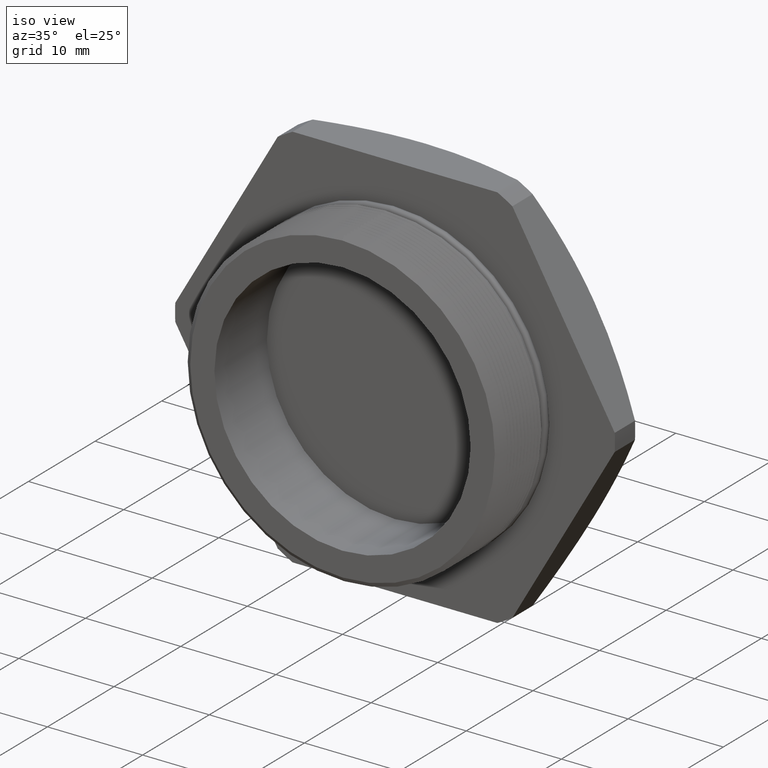
[diagram: clean part render]
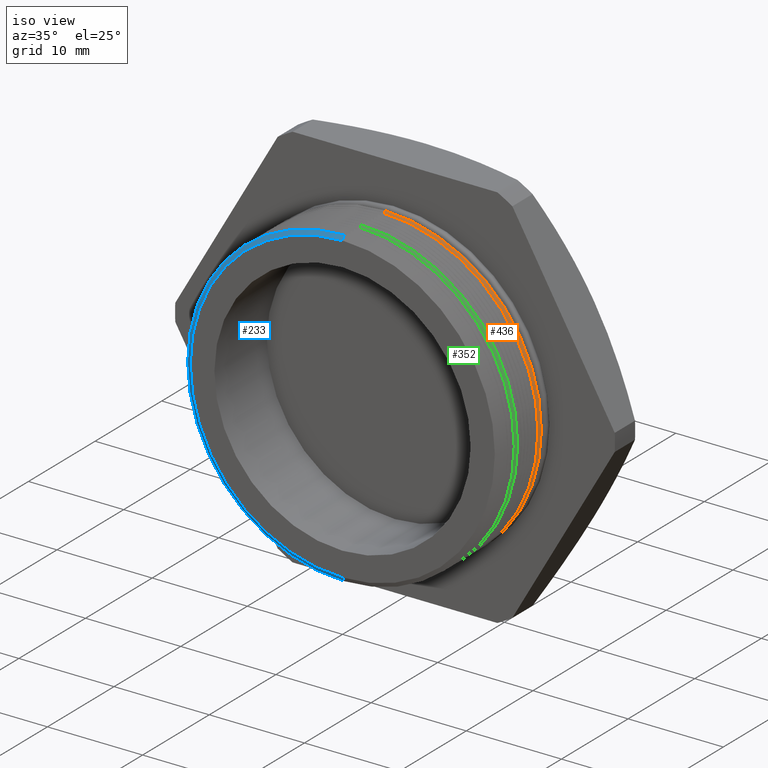
[diagram: same view with three faces highlighted in distinct colors, each labeled with its STEP entity id]
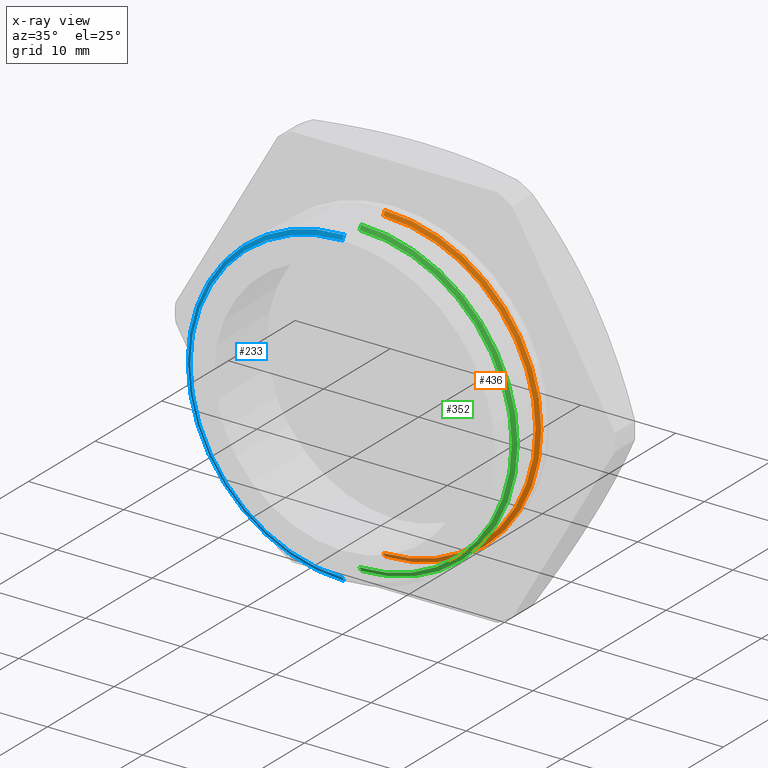
[diagram: x-ray of the same camera — body ghosted, the three highlighted faces saturated]
A machine part, iso view with three faces highlighted in distinct colors.
The next image is the same camera in x-ray (body ghosted, the three faces saturated) — at least one of them is partly hidden behind the body in this view.
Their STEP definitions:

[orange] entity #436 — the highlighted conical surface has half-angle 60 deg.
#434 = ORIENTED_EDGE ( 'NONE', *, *, #900, .F. ) ;
#435 = ORIENTED_EDGE ( 'NONE', *, *, #440, .T. ) ;
#436 = ADVANCED_FACE ( 'NONE', ( #1482 ), #1481, .T. ) ;
#437 = ORIENTED_EDGE ( 'NONE', *, *, #2234, .T. ) ;
#438 = VERTEX_POINT ( 'NONE', #1536 ) ;
#439 = EDGE_LOOP ( 'NONE', ( #434, #437, #435, #538 ) ) ;
#440 = EDGE_CURVE ( 'NONE', #438, #491, #1535, .T. ) ;
#491 = VERTEX_POINT ( 'NONE', #1625 ) ;
#537 = EDGE_CURVE ( 'NONE', #1002, #491, #1723, .T. ) ;
#538 = ORIENTED_EDGE ( 'NONE', *, *, #537, .F. ) ;
#900 = EDGE_CURVE ( 'NONE', #1266, #1002, #2111, .T. ) ;
#1002 = VERTEX_POINT ( 'NONE', #2105 ) ;
#1266 = VERTEX_POINT ( 'NONE', #2100 ) ;
#1476 = DIRECTION ( 'NONE',  ( 0.0000000000000000000, 0.0000000000000000000, 1.000000000000000000 ) ) ;
#1477 = DIRECTION ( 'NONE',  ( 0.0000000000000000000, 1.000000000000000000, 0.0000000000000000000 ) ) ;
#1478 = CARTESIAN_POINT ( 'NONE',  ( 0.0000000000000000000, 0.2499999999999998100, 0.0000000000000000000 ) ) ;
#1479 = AXIS2_PLACEMENT_3D ( 'NONE', #1478, #1477, #1476 ) ;
#1481 = CONICAL_SURFACE ( 'NONE', #1479, 0.6473205080756885300, 1.047197551196601600 ) ;
#1482 = FACE_OUTER_BOUND ( 'NONE', #439, .T. ) ;
#1531 = DIRECTION ( 'NONE',  ( 0.0000000000000000000, 0.0000000000000000000, -1.000000000000000000 ) ) ;
#1532 = DIRECTION ( 'NONE',  ( 0.0000000000000000000, -1.000000000000000000, 0.0000000000000000000 ) ) ;
#1533 = CARTESIAN_POINT ( 'NONE',  ( 0.0000000000000000000, 0.2499999999999998100, 0.0000000000000000000 ) ) ;
#1534 = AXIS2_PLACEMENT_3D ( 'NONE', #1533, #1532, #1531 ) ;
#1535 = CIRCLE ( 'NONE', #1534, 0.6473205080756885300 ) ;
#1536 = CARTESIAN_POINT ( 'NONE',  ( 0.0000000000000000000, 0.2499999999999998100, -0.6473205080756885300 ) ) ;
#1625 = CARTESIAN_POINT ( 'NONE',  ( 7.927389882373304600E-017, 0.2499999999999998100, 0.6473205080756885300 ) ) ;
#1716 = DIRECTION ( 'NONE',  ( 0.0000000000000000000, 0.4999999999999965600, 0.8660254037844405900 ) ) ;
#1717 = VECTOR ( 'NONE', #1716, 39.37007874015748100 ) ;
#1718 = CARTESIAN_POINT ( 'NONE',  ( 0.0000000000000000000, 0.2499999999999998100, 0.6473205080756885300 ) ) ;
#1723 = LINE ( 'NONE', #1718, #1717 ) ;
#2100 = CARTESIAN_POINT ( 'NONE',  ( 7.821332358500815000E-017, 0.2399999999999999100, -0.6300000000000000000 ) ) ;
#2105 = CARTESIAN_POINT ( 'NONE',  ( 0.0000000000000000000, 0.2399999999999999100, 0.6300000000000000000 ) ) ;
#2107 = DIRECTION ( 'NONE',  ( 0.0000000000000000000, 0.0000000000000000000, -1.000000000000000000 ) ) ;
#2108 = DIRECTION ( 'NONE',  ( 0.0000000000000000000, -1.000000000000000000, 0.0000000000000000000 ) ) ;
#2109 = CARTESIAN_POINT ( 'NONE',  ( 0.0000000000000000000, 0.2399999999999999100, 0.0000000000000000000 ) ) ;
#2110 = AXIS2_PLACEMENT_3D ( 'NONE', #2109, #2108, #2107 ) ;
#2111 = CIRCLE ( 'NONE', #2110, 0.6300000000000000000 ) ;
#2124 = DIRECTION ( 'NONE',  ( 1.060575238724909300E-016, 0.4999999999999965600, -0.8660254037844405900 ) ) ;
#2125 = VECTOR ( 'NONE', #2124, 39.37007874015748100 ) ;
#2126 = CARTESIAN_POINT ( 'NONE',  ( 7.927389882373304600E-017, 0.2499999999999998100, -0.6473205080756885300 ) ) ;
#2127 = LINE ( 'NONE', #2126, #2125 ) ;
#2234 = EDGE_CURVE ( 'NONE', #1266, #438, #2127, .T. ) ;

[blue] entity #233 — the highlighted conical surface has half-angle 60 deg.
#39 = ORIENTED_EDGE ( 'NONE', *, *, #196, .T. ) ;
#40 = ORIENTED_EDGE ( 'NONE', *, *, #375, .F. ) ;
#41 = ORIENTED_EDGE ( 'NONE', *, *, #42, .F. ) ;
#42 = EDGE_CURVE ( 'NONE', #150, #158, #809, .T. ) ;
#150 = VERTEX_POINT ( 'NONE', #967 ) ;
#158 = VERTEX_POINT ( 'NONE', #1019 ) ;
#182 = ORIENTED_EDGE ( 'NONE', *, *, #232, .T. ) ;
#196 = EDGE_CURVE ( 'NONE', #150, #197, #1024, .T. ) ;
#197 = VERTEX_POINT ( 'NONE', #1082 ) ;
#232 = EDGE_CURVE ( 'NONE', #197, #370, #1137, .T. ) ;
#233 = ADVANCED_FACE ( 'NONE', ( #1133 ), #1132, .T. ) ;
#234 = EDGE_LOOP ( 'NONE', ( #40, #41, #39, #182 ) ) ;
#370 = VERTEX_POINT ( 'NONE', #1350 ) ;
#375 = EDGE_CURVE ( 'NONE', #158, #370, #1410, .T. ) ;
#805 = DIRECTION ( 'NONE',  ( 0.0000000000000000000, 0.0000000000000000000, -1.000000000000000000 ) ) ;
#806 = DIRECTION ( 'NONE',  ( 0.0000000000000000000, -1.000000000000000000, 0.0000000000000000000 ) ) ;
#807 = CARTESIAN_POINT ( 'NONE',  ( 0.0000000000000000000, -1.024442997624098700E-016, 0.0000000000000000000 ) ) ;
#808 = AXIS2_PLACEMENT_3D ( 'NONE', #807, #806, #805 ) ;
#809 = CIRCLE ( 'NONE', #808, 0.6299999999999997800 ) ;
#967 = CARTESIAN_POINT ( 'NONE',  ( 0.0000000000000000000, -1.024442997624098700E-016, 0.6299999999999997800 ) ) ;
#1019 = CARTESIAN_POINT ( 'NONE',  ( 7.821332358500813800E-017, -1.024442997624098700E-016, -0.6299999999999997800 ) ) ;
#1024 = LINE ( 'NONE', #1085, #1084 ) ;
#1082 = CARTESIAN_POINT ( 'NONE',  ( 7.927389882373304600E-017, 0.009999999999999790300, 0.6473205080756885300 ) ) ;
#1083 = DIRECTION ( 'NONE',  ( 0.0000000000000000000, 0.4999999999999965600, 0.8660254037844405900 ) ) ;
#1084 = VECTOR ( 'NONE', #1083, 39.37007874015748100 ) ;
#1085 = CARTESIAN_POINT ( 'NONE',  ( 0.0000000000000000000, 0.009999999999999790300, 0.6473205080756885300 ) ) ;
#1127 = DIRECTION ( 'NONE',  ( 0.0000000000000000000, 0.0000000000000000000, 1.000000000000000000 ) ) ;
#1128 = DIRECTION ( 'NONE',  ( 0.0000000000000000000, 1.000000000000000000, 0.0000000000000000000 ) ) ;
#1129 = CARTESIAN_POINT ( 'NONE',  ( 0.0000000000000000000, 0.009999999999999790300, 0.0000000000000000000 ) ) ;
#1130 = AXIS2_PLACEMENT_3D ( 'NONE', #1129, #1128, #1127 ) ;
#1132 = CONICAL_SURFACE ( 'NONE', #1130, 0.6473205080756885300, 1.047197551196601600 ) ;
#1133 = FACE_OUTER_BOUND ( 'NONE', #234, .T. ) ;
#1134 = DIRECTION ( 'NONE',  ( 0.0000000000000000000, 0.0000000000000000000, -1.000000000000000000 ) ) ;
#1135 = DIRECTION ( 'NONE',  ( 0.0000000000000000000, -1.000000000000000000, 0.0000000000000000000 ) ) ;
#1136 = AXIS2_PLACEMENT_3D ( 'NONE', #1142, #1135, #1134 ) ;
#1137 = CIRCLE ( 'NONE', #1136, 0.6473205080756885300 ) ;
#1142 = CARTESIAN_POINT ( 'NONE',  ( 0.0000000000000000000, 0.009999999999999790300, 0.0000000000000000000 ) ) ;
#1350 = CARTESIAN_POINT ( 'NONE',  ( 0.0000000000000000000, 0.009999999999999790300, -0.6473205080756885300 ) ) ;
#1407 = DIRECTION ( 'NONE',  ( 1.060575238724909300E-016, 0.4999999999999965600, -0.8660254037844405900 ) ) ;
#1408 = VECTOR ( 'NONE', #1407, 39.37007874015748100 ) ;
#1409 = CARTESIAN_POINT ( 'NONE',  ( 7.927389882373304600E-017, 0.009999999999999790300, -0.6473205080756885300 ) ) ;
#1410 = LINE ( 'NONE', #1409, #1408 ) ;

[green] entity #352 — the highlighted conical surface has half-angle 60 deg.
#350 = VERTEX_POINT ( 'NONE', #1321 ) ;
#352 = ADVANCED_FACE ( 'NONE', ( #1315 ), #1314, .T. ) ;
#353 = VERTEX_POINT ( 'NONE', #1375 ) ;
#355 = EDGE_CURVE ( 'NONE', #466, #353, #1374, .T. ) ;
#356 = ORIENTED_EDGE ( 'NONE', *, *, #355, .F. ) ;
#357 = EDGE_CURVE ( 'NONE', #350, #353, #1370, .T. ) ;
#359 = ORIENTED_EDGE ( 'NONE', *, *, #469, .F. ) ;
#361 = ORIENTED_EDGE ( 'NONE', *, *, #357, .T. ) ;
#362 = EDGE_CURVE ( 'NONE', #461, #350, #1363, .T. ) ;
#461 = VERTEX_POINT ( 'NONE', #1557 ) ;
#466 = VERTEX_POINT ( 'NONE', #1552 ) ;
#469 = EDGE_CURVE ( 'NONE', #461, #466, #1549, .T. ) ;
#470 = EDGE_LOOP ( 'NONE', ( #359, #471, #361, #356 ) ) ;
#471 = ORIENTED_EDGE ( 'NONE', *, *, #362, .T. ) ;
#1314 = CONICAL_SURFACE ( 'NONE', #1379, 0.6473205080756885300, 1.047197551196601600 ) ;
#1315 = FACE_OUTER_BOUND ( 'NONE', #470, .T. ) ;
#1321 = CARTESIAN_POINT ( 'NONE',  ( 0.0000000000000000000, 0.1099999999999997800, -0.6473205080756885300 ) ) ;
#1360 = DIRECTION ( 'NONE',  ( 1.060575238724909300E-016, 0.4999999999999965600, -0.8660254037844405900 ) ) ;
#1361 = VECTOR ( 'NONE', #1360, 39.37007874015748100 ) ;
#1362 = CARTESIAN_POINT ( 'NONE',  ( 7.927389882373304600E-017, 0.1099999999999997800, -0.6473205080756885300 ) ) ;
#1363 = LINE ( 'NONE', #1362, #1361 ) ;
#1366 = DIRECTION ( 'NONE',  ( 0.0000000000000000000, 0.0000000000000000000, -1.000000000000000000 ) ) ;
#1367 = DIRECTION ( 'NONE',  ( 0.0000000000000000000, -1.000000000000000000, 0.0000000000000000000 ) ) ;
#1368 = CARTESIAN_POINT ( 'NONE',  ( 0.0000000000000000000, 0.1099999999999997800, 0.0000000000000000000 ) ) ;
#1369 = AXIS2_PLACEMENT_3D ( 'NONE', #1368, #1367, #1366 ) ;
#1370 = CIRCLE ( 'NONE', #1369, 0.6473205080756885300 ) ;
#1371 = DIRECTION ( 'NONE',  ( 0.0000000000000000000, 0.4999999999999965600, 0.8660254037844405900 ) ) ;
#1372 = VECTOR ( 'NONE', #1371, 39.37007874015748100 ) ;
#1373 = CARTESIAN_POINT ( 'NONE',  ( 0.0000000000000000000, 0.1099999999999997800, 0.6473205080756885300 ) ) ;
#1374 = LINE ( 'NONE', #1373, #1372 ) ;
#1375 = CARTESIAN_POINT ( 'NONE',  ( 7.927389882373304600E-017, 0.1099999999999997800, 0.6473205080756885300 ) ) ;
#1376 = DIRECTION ( 'NONE',  ( 0.0000000000000000000, 0.0000000000000000000, 1.000000000000000000 ) ) ;
#1377 = DIRECTION ( 'NONE',  ( 0.0000000000000000000, 1.000000000000000000, 0.0000000000000000000 ) ) ;
#1378 = CARTESIAN_POINT ( 'NONE',  ( 0.0000000000000000000, 0.1099999999999997800, 0.0000000000000000000 ) ) ;
#1379 = AXIS2_PLACEMENT_3D ( 'NONE', #1378, #1377, #1376 ) ;
#1541 = DIRECTION ( 'NONE',  ( 0.0000000000000000000, 0.0000000000000000000, -1.000000000000000000 ) ) ;
#1542 = DIRECTION ( 'NONE',  ( 0.0000000000000000000, -1.000000000000000000, 0.0000000000000000000 ) ) ;
#1543 = CARTESIAN_POINT ( 'NONE',  ( 0.0000000000000000000, 0.09999999999999989500, 0.0000000000000000000 ) ) ;
#1544 = AXIS2_PLACEMENT_3D ( 'NONE', #1543, #1542, #1541 ) ;
#1549 = CIRCLE ( 'NONE', #1544, 0.6300000000000000000 ) ;
#1552 = CARTESIAN_POINT ( 'NONE',  ( 0.0000000000000000000, 0.09999999999999989500, 0.6300000000000000000 ) ) ;
#1557 = CARTESIAN_POINT ( 'NONE',  ( 7.821332358500815000E-017, 0.09999999999999989500, -0.6300000000000000000 ) ) ;